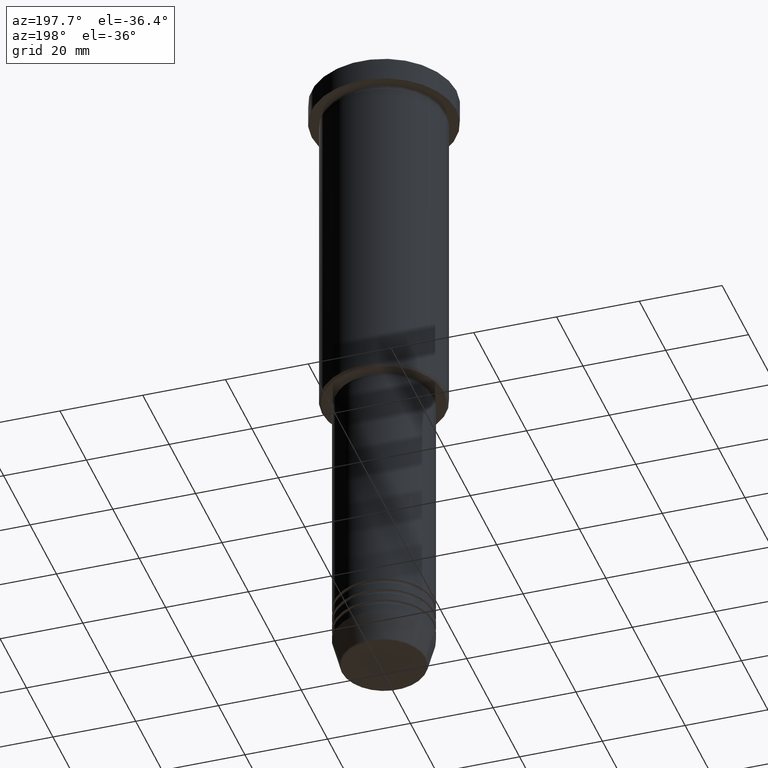
[diagram: clean part render]
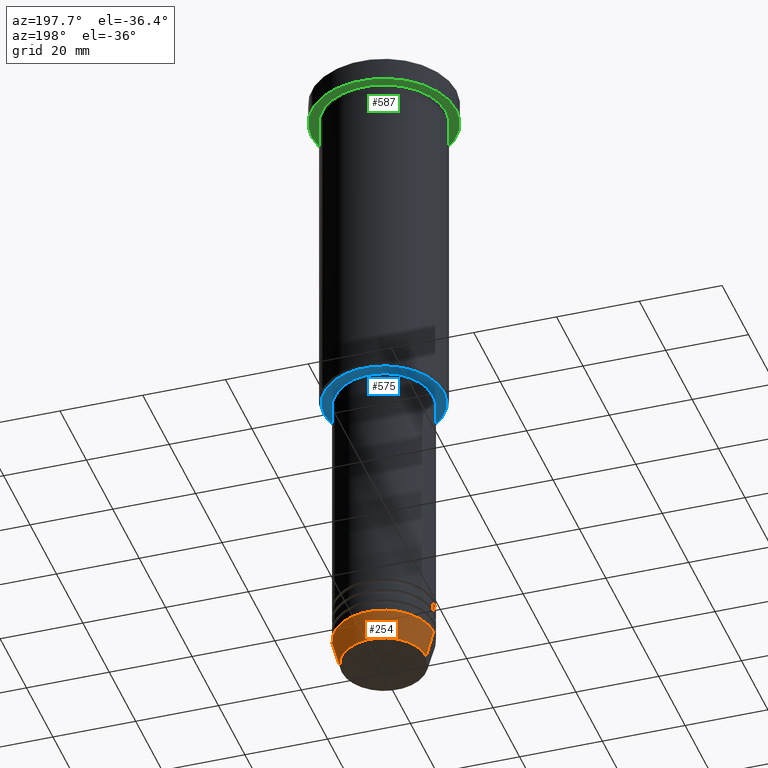
[diagram: same view with three faces highlighted in distinct colors, each labeled with its STEP entity id]
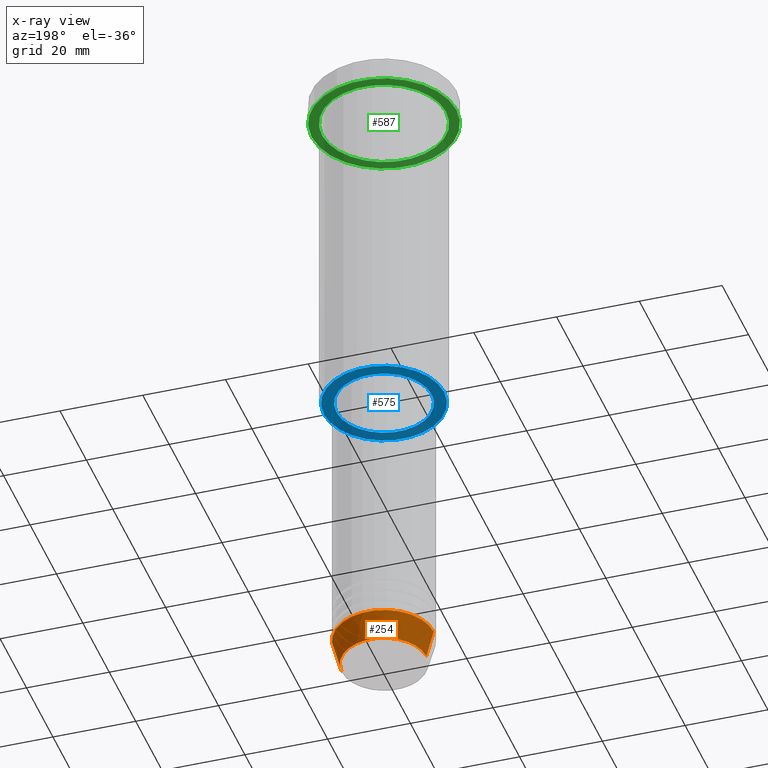
[diagram: x-ray of the same camera — body ghosted, the three highlighted faces saturated]
A machine part, auxiliary view with three faces highlighted in distinct colors.
The next image is the same camera in x-ray (body ghosted, the three faces saturated) — at least one of them is partly hidden behind the body in this view.
Their STEP definitions:

[orange] entity #254 — the highlighted conical surface has half-angle 15 deg.
#53 = CARTESIAN_POINT ( 'NONE',  ( -12.00000000000000000, 1.469576158976823947E-15, -154.0000000000000000 ) ) ;
#66 = ORIENTED_EDGE ( 'NONE', *, *, #219, .F. ) ;
#74 = VECTOR ( 'NONE', #1013, 1000.000000000000000 ) ;
#77 = EDGE_CURVE ( 'NONE', #705, #1041, #678, .T. ) ;
#83 = CARTESIAN_POINT ( 'NONE',  ( -10.22365507213719837, 1.360806402472383336E-15, -160.6294095225512422 ) ) ;
#132 = CIRCLE ( 'NONE', #618, 10.22365507213719660 ) ;
#170 = CARTESIAN_POINT ( 'NONE',  ( 0.000000000000000000, 0.000000000000000000, -160.6294095225512422 ) ) ;
#219 = EDGE_CURVE ( 'NONE', #1041, #676, #1070, .T. ) ;
#244 = CONICAL_SURFACE ( 'NONE', #307, 12.00000000000000000, 0.2617993877991500740 ) ;
#254 = ADVANCED_FACE ( 'NONE', ( #663 ), #244, .T. ) ;
#263 = DIRECTION ( 'NONE',  ( 1.000000000000000000, 0.000000000000000000, 0.000000000000000000 ) ) ;
#307 = AXIS2_PLACEMENT_3D ( 'NONE', #1050, #1144, #263 ) ;
#334 = DIRECTION ( 'NONE',  ( 1.000000000000000000, 0.000000000000000000, 0.000000000000000000 ) ) ;
#343 = VERTEX_POINT ( 'NONE', #83 ) ;
#380 = CARTESIAN_POINT ( 'NONE',  ( -12.00000000000000000, 1.469576158976823947E-15, -154.0000000000000000 ) ) ;
#425 = CARTESIAN_POINT ( 'NONE',  ( 0.000000000000000000, 0.000000000000000000, -154.0000000000000000 ) ) ;
#436 = CARTESIAN_POINT ( 'NONE',  ( 10.22365507213719660, 0.000000000000000000, -160.6294095225512422 ) ) ;
#488 = DIRECTION ( 'NONE',  ( 0.2588190451025213501, 0.000000000000000000, 0.9659258262890680902 ) ) ;
#506 = ORIENTED_EDGE ( 'NONE', *, *, #930, .T. ) ;
#576 = AXIS2_PLACEMENT_3D ( 'NONE', #425, #1142, #334 ) ;
#580 = CARTESIAN_POINT ( 'NONE',  ( 12.00000000000000000, 0.000000000000000000, -154.0000000000000000 ) ) ;
#618 = AXIS2_PLACEMENT_3D ( 'NONE', #170, #989, #897 ) ;
#663 = FACE_OUTER_BOUND ( 'NONE', #865, .T. ) ;
#676 = VERTEX_POINT ( 'NONE', #53 ) ;
#678 = LINE ( 'NONE', #580, #687 ) ;
#687 = VECTOR ( 'NONE', #488, 1000.000000000000000 ) ;
#705 = VERTEX_POINT ( 'NONE', #436 ) ;
#865 = EDGE_LOOP ( 'NONE', ( #1014, #506, #66, #957 ) ) ;
#897 = DIRECTION ( 'NONE',  ( 1.000000000000000000, 0.000000000000000000, 0.000000000000000000 ) ) ;
#930 = EDGE_CURVE ( 'NONE', #343, #676, #1183, .T. ) ;
#957 = ORIENTED_EDGE ( 'NONE', *, *, #77, .F. ) ;
#989 = DIRECTION ( 'NONE',  ( -0.000000000000000000, -0.000000000000000000, 1.000000000000000000 ) ) ;
#1013 = DIRECTION ( 'NONE',  ( -0.2588190451025213501, 3.169619151431772337E-17, 0.9659258262890680902 ) ) ;
#1014 = ORIENTED_EDGE ( 'NONE', *, *, #1152, .T. ) ;
#1023 = CARTESIAN_POINT ( 'NONE',  ( 12.00000000000000000, 0.000000000000000000, -154.0000000000000000 ) ) ;
#1041 = VERTEX_POINT ( 'NONE', #1023 ) ;
#1050 = CARTESIAN_POINT ( 'NONE',  ( 0.000000000000000000, 0.000000000000000000, -154.0000000000000000 ) ) ;
#1070 = CIRCLE ( 'NONE', #576, 12.00000000000000000 ) ;
#1142 = DIRECTION ( 'NONE',  ( -0.000000000000000000, -0.000000000000000000, 1.000000000000000000 ) ) ;
#1144 = DIRECTION ( 'NONE',  ( -0.000000000000000000, -0.000000000000000000, 1.000000000000000000 ) ) ;
#1152 = EDGE_CURVE ( 'NONE', #705, #343, #132, .T. ) ;
#1183 = LINE ( 'NONE', #380, #74 ) ;

[blue] entity #575 — the highlighted planar face has unit normal (0, 0, -1).
#141 = ORIENTED_EDGE ( 'NONE', *, *, #675, .T. ) ;
#154 = CARTESIAN_POINT ( 'NONE',  ( 11.50000000000000000, 0.000000000000000000, -86.00000000000000000 ) ) ;
#211 = CIRCLE ( 'NONE', #468, 14.49999999999999645 ) ;
#220 = EDGE_LOOP ( 'NONE', ( #490, #489 ) ) ;
#228 = CARTESIAN_POINT ( 'NONE',  ( 0.000000000000000000, 0.000000000000000000, -86.00000000000000000 ) ) ;
#272 = AXIS2_PLACEMENT_3D ( 'NONE', #349, #1145, #711 ) ;
#310 = CARTESIAN_POINT ( 'NONE',  ( 14.49999999999999645, 0.000000000000000000, -86.00000000000000000 ) ) ;
#319 = VERTEX_POINT ( 'NONE', #154 ) ;
#321 = CARTESIAN_POINT ( 'NONE',  ( -11.50000000000000000, 1.408343819019456176E-15, -86.00000000000000000 ) ) ;
#349 = CARTESIAN_POINT ( 'NONE',  ( 0.000000000000000000, 0.000000000000000000, -86.00000000000000000 ) ) ;
#401 = CARTESIAN_POINT ( 'NONE',  ( -14.49999999999999645, 1.806354028742345802E-15, -86.00000000000000000 ) ) ;
#410 = DIRECTION ( 'NONE',  ( 0.000000000000000000, 0.000000000000000000, -1.000000000000000000 ) ) ;
#417 = DIRECTION ( 'NONE',  ( 1.000000000000000000, 0.000000000000000000, 0.000000000000000000 ) ) ;
#422 = DIRECTION ( 'NONE',  ( -0.000000000000000000, -0.000000000000000000, 1.000000000000000000 ) ) ;
#437 = CIRCLE ( 'NONE', #822, 11.50000000000000000 ) ;
#449 = DIRECTION ( 'NONE',  ( -1.000000000000000000, 0.000000000000000000, 0.000000000000000000 ) ) ;
#468 = AXIS2_PLACEMENT_3D ( 'NONE', #228, #852, #684 ) ;
#489 = ORIENTED_EDGE ( 'NONE', *, *, #719, .T. ) ;
#490 = ORIENTED_EDGE ( 'NONE', *, *, #1026, .T. ) ;
#572 = PLANE ( 'NONE',  #741 ) ;
#575 = ADVANCED_FACE ( 'NONE', ( #909, #992 ), #572, .T. ) ;
#637 = VERTEX_POINT ( 'NONE', #321 ) ;
#675 = EDGE_CURVE ( 'NONE', #319, #637, #437, .T. ) ;
#684 = DIRECTION ( 'NONE',  ( -1.000000000000000000, 0.000000000000000000, 0.000000000000000000 ) ) ;
#711 = DIRECTION ( 'NONE',  ( 1.000000000000000000, 0.000000000000000000, 0.000000000000000000 ) ) ;
#716 = AXIS2_PLACEMENT_3D ( 'NONE', #1150, #1083, #449 ) ;
#719 = EDGE_CURVE ( 'NONE', #857, #1022, #974, .T. ) ;
#741 = AXIS2_PLACEMENT_3D ( 'NONE', #859, #410, #784 ) ;
#742 = EDGE_CURVE ( 'NONE', #637, #319, #1138, .T. ) ;
#766 = CARTESIAN_POINT ( 'NONE',  ( 0.000000000000000000, 0.000000000000000000, -86.00000000000000000 ) ) ;
#784 = DIRECTION ( 'NONE',  ( -1.000000000000000000, 0.000000000000000000, -0.000000000000000000 ) ) ;
#792 = ORIENTED_EDGE ( 'NONE', *, *, #742, .T. ) ;
#822 = AXIS2_PLACEMENT_3D ( 'NONE', #766, #422, #417 ) ;
#852 = DIRECTION ( 'NONE',  ( 0.000000000000000000, 0.000000000000000000, -1.000000000000000000 ) ) ;
#857 = VERTEX_POINT ( 'NONE', #401 ) ;
#859 = CARTESIAN_POINT ( 'NONE',  ( 0.000000000000000000, 15.00000000000000000, -86.00000000000000000 ) ) ;
#909 = FACE_OUTER_BOUND ( 'NONE', #220, .T. ) ;
#954 = EDGE_LOOP ( 'NONE', ( #141, #792 ) ) ;
#974 = CIRCLE ( 'NONE', #716, 14.49999999999999645 ) ;
#992 = FACE_BOUND ( 'NONE', #954, .T. ) ;
#1022 = VERTEX_POINT ( 'NONE', #310 ) ;
#1026 = EDGE_CURVE ( 'NONE', #1022, #857, #211, .T. ) ;
#1083 = DIRECTION ( 'NONE',  ( 0.000000000000000000, 0.000000000000000000, -1.000000000000000000 ) ) ;
#1138 = CIRCLE ( 'NONE', #272, 11.50000000000000000 ) ;
#1145 = DIRECTION ( 'NONE',  ( -0.000000000000000000, -0.000000000000000000, 1.000000000000000000 ) ) ;
#1150 = CARTESIAN_POINT ( 'NONE',  ( 0.000000000000000000, 0.000000000000000000, -86.00000000000000000 ) ) ;

[green] entity #587 — the highlighted planar face has unit normal (0, 0, -1).
#39 = DIRECTION ( 'NONE',  ( 0.000000000000000000, 0.000000000000000000, -1.000000000000000000 ) ) ;
#147 = CIRCLE ( 'NONE', #780, 17.50000000000000000 ) ;
#185 = EDGE_LOOP ( 'NONE', ( #214, #209 ) ) ;
#191 = CARTESIAN_POINT ( 'NONE',  ( 17.50000000000000000, 0.000000000000000000, -5.999999999999995559 ) ) ;
#192 = VERTEX_POINT ( 'NONE', #883 ) ;
#209 = ORIENTED_EDGE ( 'NONE', *, *, #956, .F. ) ;
#213 = AXIS2_PLACEMENT_3D ( 'NONE', #533, #1058, #1068 ) ;
#214 = ORIENTED_EDGE ( 'NONE', *, *, #1066, .F. ) ;
#218 = DIRECTION ( 'NONE',  ( -0.000000000000000000, -0.000000000000000000, 1.000000000000000000 ) ) ;
#299 = CARTESIAN_POINT ( 'NONE',  ( 0.000000000000000000, 0.000000000000000000, -5.999999999999995559 ) ) ;
#315 = ORIENTED_EDGE ( 'NONE', *, *, #986, .T. ) ;
#316 = DIRECTION ( 'NONE',  ( -0.000000000000000000, -0.000000000000000000, 1.000000000000000000 ) ) ;
#402 = ORIENTED_EDGE ( 'NONE', *, *, #1177, .T. ) ;
#430 = FACE_OUTER_BOUND ( 'NONE', #185, .T. ) ;
#492 = VERTEX_POINT ( 'NONE', #961 ) ;
#510 = DIRECTION ( 'NONE',  ( -1.000000000000000000, 0.000000000000000000, 0.000000000000000000 ) ) ;
#521 = CARTESIAN_POINT ( 'NONE',  ( -15.00000000000000000, 0.000000000000000000, -5.999999999999994671 ) ) ;
#522 = CIRCLE ( 'NONE', #836, 15.00000000000000000 ) ;
#533 = CARTESIAN_POINT ( 'NONE',  ( 0.000000000000000000, 0.000000000000000000, -5.999999999999995559 ) ) ;
#563 = CIRCLE ( 'NONE', #1056, 17.50000000000000000 ) ;
#587 = ADVANCED_FACE ( 'NONE', ( #704, #430 ), #853, .T. ) ;
#590 = DIRECTION ( 'NONE',  ( 1.000000000000000000, 0.000000000000000000, 0.000000000000000000 ) ) ;
#685 = DIRECTION ( 'NONE',  ( -1.000000000000000000, 0.000000000000000000, -0.000000000000000000 ) ) ;
#704 = FACE_BOUND ( 'NONE', #1060, .T. ) ;
#780 = AXIS2_PLACEMENT_3D ( 'NONE', #299, #842, #1106 ) ;
#833 = AXIS2_PLACEMENT_3D ( 'NONE', #945, #39, #685 ) ;
#836 = AXIS2_PLACEMENT_3D ( 'NONE', #1002, #218, #510 ) ;
#837 = CIRCLE ( 'NONE', #213, 15.00000000000000000 ) ;
#842 = DIRECTION ( 'NONE',  ( -0.000000000000000000, -0.000000000000000000, 1.000000000000000000 ) ) ;
#853 = PLANE ( 'NONE',  #833 ) ;
#883 = CARTESIAN_POINT ( 'NONE',  ( 15.00000000000000000, 1.836970198721029589E-15, -5.999999999999994671 ) ) ;
#945 = CARTESIAN_POINT ( 'NONE',  ( 0.000000000000000000, 17.50000000000000000, -5.999999999999995559 ) ) ;
#948 = VERTEX_POINT ( 'NONE', #191 ) ;
#956 = EDGE_CURVE ( 'NONE', #492, #948, #147, .T. ) ;
#961 = CARTESIAN_POINT ( 'NONE',  ( -17.50000000000000000, 2.143131898507868248E-15, -5.999999999999995559 ) ) ;
#986 = EDGE_CURVE ( 'NONE', #192, #1043, #522, .T. ) ;
#1002 = CARTESIAN_POINT ( 'NONE',  ( 0.000000000000000000, 0.000000000000000000, -5.999999999999995559 ) ) ;
#1021 = CARTESIAN_POINT ( 'NONE',  ( 0.000000000000000000, 0.000000000000000000, -5.999999999999995559 ) ) ;
#1043 = VERTEX_POINT ( 'NONE', #521 ) ;
#1056 = AXIS2_PLACEMENT_3D ( 'NONE', #1021, #316, #590 ) ;
#1058 = DIRECTION ( 'NONE',  ( -0.000000000000000000, -0.000000000000000000, 1.000000000000000000 ) ) ;
#1060 = EDGE_LOOP ( 'NONE', ( #402, #315 ) ) ;
#1066 = EDGE_CURVE ( 'NONE', #948, #492, #563, .T. ) ;
#1068 = DIRECTION ( 'NONE',  ( -1.000000000000000000, 0.000000000000000000, 0.000000000000000000 ) ) ;
#1106 = DIRECTION ( 'NONE',  ( 1.000000000000000000, 0.000000000000000000, 0.000000000000000000 ) ) ;
#1177 = EDGE_CURVE ( 'NONE', #1043, #192, #837, .T. ) ;